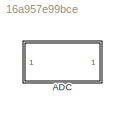
MODEL slx_16a957e99bce
KIND library
CONFIG AbsTol = auto
CONFIG EnableMultiTasking = on
CONFIG FixedStep = auto
CONFIG MaxStep = auto
CONFIG MinStep = auto
CONFIG RelTol = 1e-3
CONFIG SampleTimeConstraint = Unconstrained
CONFIG SolverName = ode45
CONFIG StartTime = 0.0
CONFIG StopTime = 10.0
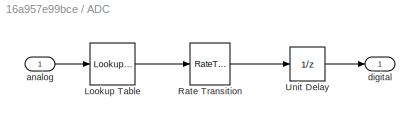
BLOCK [SubSystem] ADC
  Ports = [1, 1]
  RequestExecContextInheritance = off
BLOCK [Lookup_n-D] ADC/Lookup Table
  AttributesFormatString = Output data type: %<OutDataTypeStr>
  BreakpointsForDimension1 = analog_range
  ExtrapMethod = Clip
  InputPortMap = u0
  NumberOfTableDimensions = 1
  OutDataTypeStr = outputType
  Ports = [1, 1]
  Table = digital_range
BLOCK [RateTransition] ADC/Rate Transition
  Integrity = off
  OutPortSampleTime = 0
BLOCK [UnitDelay] ADC/Unit Delay
  HasFrameUpgradeWarning = on
  SampleTime = sampleRate
BLOCK [Inport] ADC/analog
BLOCK [Outport] ADC/digital
  VectorParamsAs1DForOutWhenUnconnected = off
LINE ADC/Lookup Table:1 -> ADC/Rate Transition:1
LINE ADC/Rate Transition:1 -> ADC/Unit Delay:1
LINE ADC/Unit Delay:1 -> ADC/digital:1
LINE ADC/analog:1 -> ADC/Lookup Table:1
